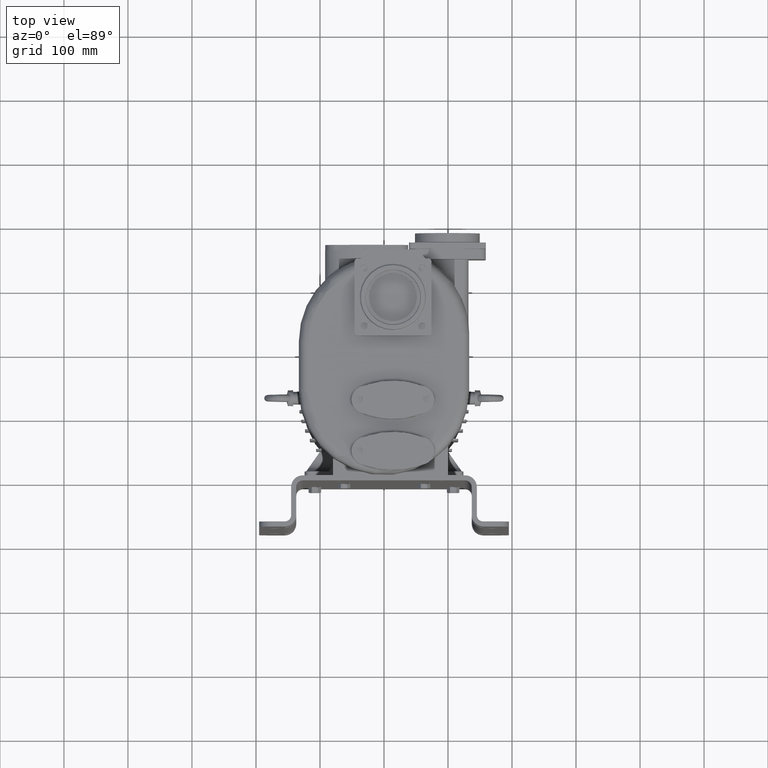
[diagram: clean part render]
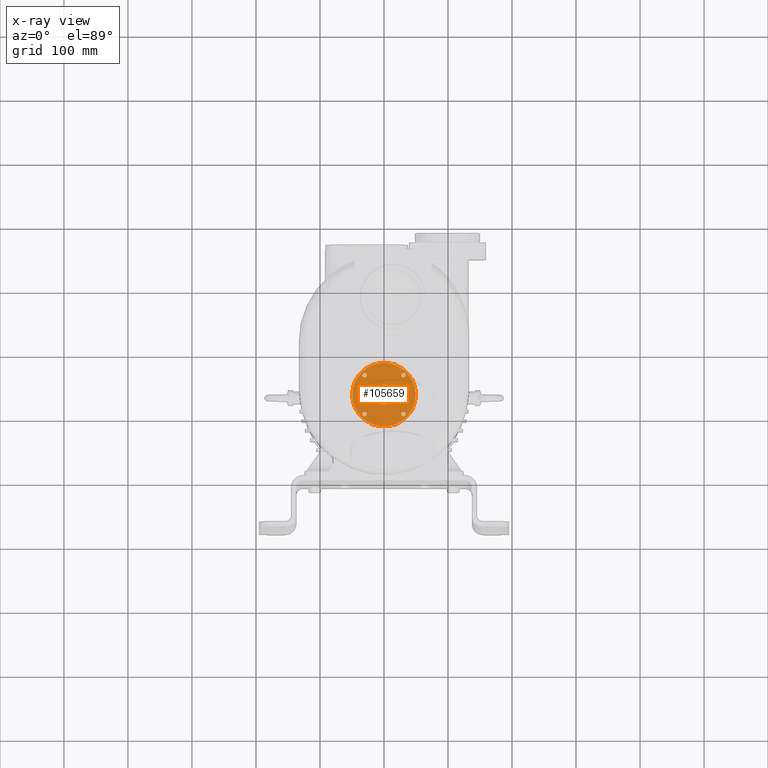
[diagram: x-ray — body ghosted, one internal face saturated and labeled with its STEP entity id]
A machine part, top view, then the same camera in x-ray: the body is ghosted and one INTERNAL B-rep face — a face not visible from any outside direction — is saturated and labeled: STEP entity #105659.
In plain terms, the highlighted planar face has unit normal (0, 0, -1).
Its self-contained STEP definition (entity closure, byte-faithful):
#29159=CARTESIAN_POINT('',(0.E0,1.32E2,-2.885E2));
#29160=DIRECTION('',(0.E0,0.E0,-1.E0));
#29161=DIRECTION('',(1.E0,0.E0,0.E0));
#29162=AXIS2_PLACEMENT_3D('',#29159,#29160,#29161);
#29168=CARTESIAN_POINT('',(0.E0,1.32E2,-2.885E2));
#29169=DIRECTION('',(0.E0,0.E0,1.E0));
#29170=DIRECTION('',(1.E0,0.E0,0.E0));
#29171=AXIS2_PLACEMENT_3D('',#29168,#29169,#29170);
#29177=CARTESIAN_POINT('',(-3.040559159102E1,1.624055915910E2,-2.885E2));
#29178=DIRECTION('',(0.E0,0.E0,1.E0));
#29179=DIRECTION('',(-1.E0,0.E0,0.E0));
#29180=AXIS2_PLACEMENT_3D('',#29177,#29178,#29179);
#29182=CARTESIAN_POINT('',(-3.040559159102E1,1.624055915910E2,-2.885E2));
#29183=DIRECTION('',(0.E0,0.E0,1.E0));
#29184=DIRECTION('',(1.E0,0.E0,0.E0));
#29185=AXIS2_PLACEMENT_3D('',#29182,#29183,#29184);
#29187=CARTESIAN_POINT('',(3.040559159102E1,1.624055915910E2,-2.885E2));
#29188=DIRECTION('',(0.E0,0.E0,1.E0));
#29189=DIRECTION('',(0.E0,1.E0,0.E0));
#29190=AXIS2_PLACEMENT_3D('',#29187,#29188,#29189);
#29192=CARTESIAN_POINT('',(3.040559159102E1,1.624055915910E2,-2.885E2));
#29193=DIRECTION('',(0.E0,0.E0,1.E0));
#29194=DIRECTION('',(0.E0,-1.E0,0.E0));
#29195=AXIS2_PLACEMENT_3D('',#29192,#29193,#29194);
#29197=CARTESIAN_POINT('',(3.040559159102E1,1.015944084090E2,-2.885E2));
#29198=DIRECTION('',(0.E0,0.E0,1.E0));
#29199=DIRECTION('',(1.E0,0.E0,0.E0));
#29200=AXIS2_PLACEMENT_3D('',#29197,#29198,#29199);
#29202=CARTESIAN_POINT('',(3.040559159102E1,1.015944084090E2,-2.885E2));
#29203=DIRECTION('',(0.E0,0.E0,1.E0));
#29204=DIRECTION('',(-1.E0,0.E0,0.E0));
#29205=AXIS2_PLACEMENT_3D('',#29202,#29203,#29204);
#29207=CARTESIAN_POINT('',(-3.040559159102E1,1.015944084090E2,-2.885E2));
#29208=DIRECTION('',(0.E0,0.E0,1.E0));
#29209=DIRECTION('',(0.E0,-1.E0,0.E0));
#29210=AXIS2_PLACEMENT_3D('',#29207,#29208,#29209);
#29212=CARTESIAN_POINT('',(-3.040559159102E1,1.015944084090E2,-2.885E2));
#29213=DIRECTION('',(0.E0,0.E0,1.E0));
#29214=DIRECTION('',(0.E0,1.E0,0.E0));
#29215=AXIS2_PLACEMENT_3D('',#29212,#29213,#29214);
#29217=CARTESIAN_POINT('',(0.E0,1.32E2,-2.885E2));
#29218=DIRECTION('',(0.E0,0.E0,1.E0));
#29219=DIRECTION('',(-1.E0,0.E0,0.E0));
#29220=AXIS2_PLACEMENT_3D('',#29217,#29218,#29219);
#29222=CARTESIAN_POINT('',(0.E0,1.32E2,-2.885E2));
#29223=DIRECTION('',(0.E0,0.E0,1.E0));
#29224=DIRECTION('',(1.E0,0.E0,0.E0));
#29225=AXIS2_PLACEMENT_3D('',#29222,#29223,#29224);
#60390=CARTESIAN_POINT('',(4.975E1,1.32E2,-2.885E2));
#60391=CARTESIAN_POINT('',(-4.975E1,1.32E2,-2.885E2));
#60392=VERTEX_POINT('',#60390);
#60393=VERTEX_POINT('',#60391);
#60394=CARTESIAN_POINT('',(-3.390559159102E1,1.624055915910E2,-2.885E2));
#60395=CARTESIAN_POINT('',(-2.690559159102E1,1.624055915910E2,-2.885E2));
#60396=VERTEX_POINT('',#60394);
#60397=VERTEX_POINT('',#60395);
#60398=CARTESIAN_POINT('',(3.040559159102E1,1.659055915910E2,-2.885E2));
#60399=CARTESIAN_POINT('',(3.040559159102E1,1.589055915910E2,-2.885E2));
#60400=VERTEX_POINT('',#60398);
#60401=VERTEX_POINT('',#60399);
#60402=CARTESIAN_POINT('',(3.390559159102E1,1.015944084090E2,-2.885E2));
#60403=CARTESIAN_POINT('',(2.690559159102E1,1.015944084090E2,-2.885E2));
#60404=VERTEX_POINT('',#60402);
#60405=VERTEX_POINT('',#60403);
#60406=CARTESIAN_POINT('',(-3.040559159102E1,9.809440840898E1,-2.885E2));
#60407=CARTESIAN_POINT('',(-3.040559159102E1,1.050944084090E2,-2.885E2));
#60408=VERTEX_POINT('',#60406);
#60409=VERTEX_POINT('',#60407);
#60410=CARTESIAN_POINT('',(-1.55E1,1.32E2,-2.885E2));
#60411=CARTESIAN_POINT('',(1.55E1,1.32E2,-2.885E2));
#60412=VERTEX_POINT('',#60410);
#60413=VERTEX_POINT('',#60411);
#105620=CARTESIAN_POINT('',(0.E0,1.32E2,-2.885E2));
#105621=DIRECTION('',(0.E0,0.E0,-1.E0));
#105622=DIRECTION('',(-1.E0,0.E0,0.E0));
#105623=AXIS2_PLACEMENT_3D('',#105620,#105621,#105622);
#105624=PLANE('',#105623);
#105625=ORIENTED_EDGE('',*,*,#105600,.F.);
#105626=ORIENTED_EDGE('',*,*,#105614,.T.);
#105627=EDGE_LOOP('',(#105625,#105626));
#105628=FACE_OUTER_BOUND('',#105627,.F.);
#105630=ORIENTED_EDGE('',*,*,#105629,.F.);
#105632=ORIENTED_EDGE('',*,*,#105631,.F.);
#105633=EDGE_LOOP('',(#105630,#105632));
#105634=FACE_BOUND('',#105633,.F.);
#105636=ORIENTED_EDGE('',*,*,#105635,.F.);
#105638=ORIENTED_EDGE('',*,*,#105637,.F.);
#105639=EDGE_LOOP('',(#105636,#105638));
#105640=FACE_BOUND('',#105639,.F.);
#105642=ORIENTED_EDGE('',*,*,#105641,.F.);
#105644=ORIENTED_EDGE('',*,*,#105643,.F.);
#105645=EDGE_LOOP('',(#105642,#105644));
#105646=FACE_BOUND('',#105645,.F.);
#105648=ORIENTED_EDGE('',*,*,#105647,.F.);
#105650=ORIENTED_EDGE('',*,*,#105649,.F.);
#105651=EDGE_LOOP('',(#105648,#105650));
#105652=FACE_BOUND('',#105651,.F.);
#105654=ORIENTED_EDGE('',*,*,#105653,.F.);
#105656=ORIENTED_EDGE('',*,*,#105655,.F.);
#105657=EDGE_LOOP('',(#105654,#105656));
#105658=FACE_BOUND('',#105657,.F.);
#105659=ADVANCED_FACE('',(#105628,#105634,#105640,#105646,#105652,#105658),
#105624,.T.);
#29163=CIRCLE('',#29162,4.975E1);
#29172=CIRCLE('',#29171,4.975E1);
#29181=CIRCLE('',#29180,3.5E0);
#29186=CIRCLE('',#29185,3.5E0);
#29191=CIRCLE('',#29190,3.5E0);
#29196=CIRCLE('',#29195,3.5E0);
#29201=CIRCLE('',#29200,3.5E0);
#29206=CIRCLE('',#29205,3.5E0);
#29211=CIRCLE('',#29210,3.5E0);
#29216=CIRCLE('',#29215,3.5E0);
#29221=CIRCLE('',#29220,1.55E1);
#29226=CIRCLE('',#29225,1.55E1);
#105600=EDGE_CURVE('',#60392,#60393,#29163,.T.);
#105614=EDGE_CURVE('',#60392,#60393,#29172,.T.);
#105629=EDGE_CURVE('',#60396,#60397,#29181,.T.);
#105631=EDGE_CURVE('',#60397,#60396,#29186,.T.);
#105635=EDGE_CURVE('',#60400,#60401,#29191,.T.);
#105637=EDGE_CURVE('',#60401,#60400,#29196,.T.);
#105641=EDGE_CURVE('',#60404,#60405,#29201,.T.);
#105643=EDGE_CURVE('',#60405,#60404,#29206,.T.);
#105647=EDGE_CURVE('',#60408,#60409,#29211,.T.);
#105649=EDGE_CURVE('',#60409,#60408,#29216,.T.);
#105653=EDGE_CURVE('',#60412,#60413,#29221,.T.);
#105655=EDGE_CURVE('',#60413,#60412,#29226,.T.);